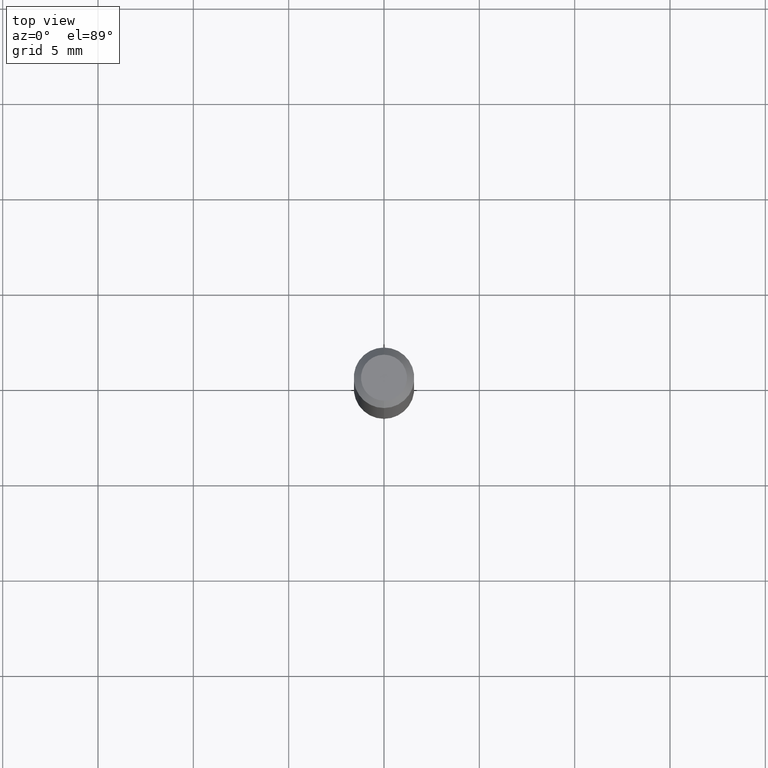
[diagram: clean part render]
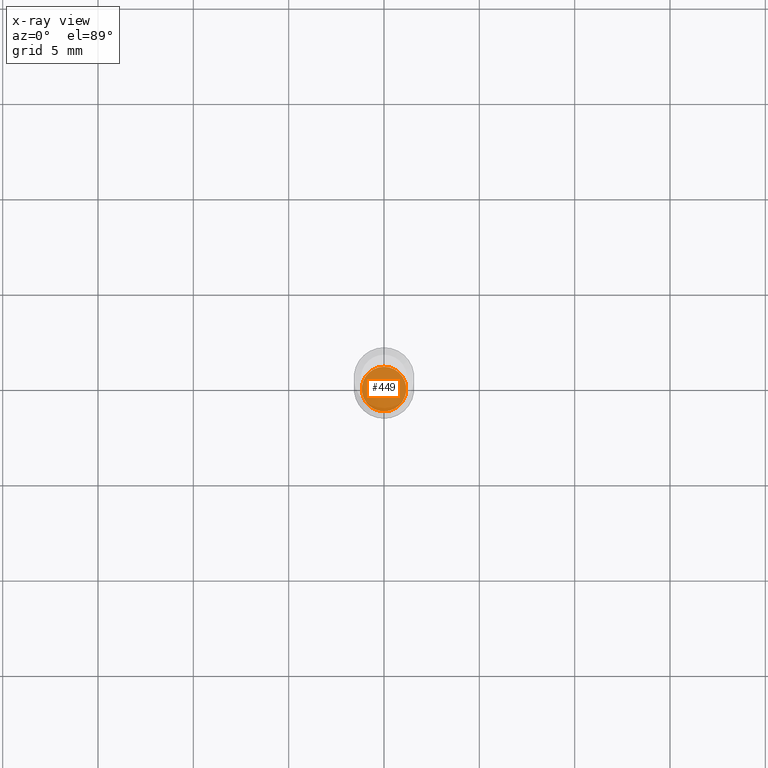
[diagram: x-ray — body ghosted, one internal face saturated and labeled with its STEP entity id]
A machine part, top view, then the same camera in x-ray: the body is ghosted and one INTERNAL B-rep face — a face not visible from any outside direction — is saturated and labeled: STEP entity #449.
In plain terms, the highlighted planar face has unit normal (-0, 0, 1).
Its self-contained STEP definition (entity closure, byte-faithful):
#68 = EDGE_CURVE ( 'NONE', #499, #412, #465, .T. ) ;
#180 = CIRCLE ( 'NONE', #366, 0.04599999999999999922 ) ;
#187 = CARTESIAN_POINT ( 'NONE',  ( 3.325794411660219222E-29, -4.748476435207708706E-15, -1.360000000000000320 ) ) ;
#188 = DIRECTION ( 'NONE',  ( -6.982962677686265133E-15, -1.000000000000000000, 5.938799986226659171E-15 ) ) ;
#201 = DIRECTION ( 'NONE',  ( -2.445437067397219192E-29, 3.491526790593902555E-15, 1.000000000000000000 ) ) ;
#217 = ORIENTED_EDGE ( 'NONE', *, *, #347, .F. ) ;
#218 = DIRECTION ( 'NONE',  ( -2.445437067397219472E-29, 3.491526790593902555E-15, 1.000000000000000000 ) ) ;
#234 = DIRECTION ( 'NONE',  ( -6.982962677686265922E-15, -1.000000000000000000, 3.491526790593902555E-15 ) ) ;
#249 = ORIENTED_EDGE ( 'NONE', *, *, #68, .F. ) ;
#298 = AXIS2_PLACEMENT_3D ( 'NONE', #492, #201, #234 ) ;
#305 = DIRECTION ( 'NONE',  ( -2.445437067397219472E-29, 3.491526790593902555E-15, 1.000000000000000000 ) ) ;
#317 = CARTESIAN_POINT ( 'NONE',  ( -3.212162831735349630E-16, -0.04600000000000474543, -1.359999999999999876 ) ) ;
#347 = EDGE_CURVE ( 'NONE', #412, #499, #180, .T. ) ;
#366 = AXIS2_PLACEMENT_3D ( 'NONE', #427, #218, #188 ) ;
#412 = VERTEX_POINT ( 'NONE', #508 ) ;
#419 = FACE_OUTER_BOUND ( 'NONE', #429, .T. ) ;
#427 = CARTESIAN_POINT ( 'NONE',  ( 3.325794411660219222E-29, -4.748476435207708706E-15, -1.360000000000000320 ) ) ;
#429 = EDGE_LOOP ( 'NONE', ( #249, #217 ) ) ;
#449 = ADVANCED_FACE ( 'NONE', ( #419 ), #467, .F. ) ;
#465 = CIRCLE ( 'NONE', #507, 0.04599999999999999922 ) ;
#467 = PLANE ( 'NONE',  #298 ) ;
#492 = CARTESIAN_POINT ( 'NONE',  ( 3.325794411660219222E-29, -4.748476435207708706E-15, -1.360000000000000320 ) ) ;
#499 = VERTEX_POINT ( 'NONE', #317 ) ;
#503 = DIRECTION ( 'NONE',  ( -6.982962677686265133E-15, -1.000000000000000000, 5.938799986226659171E-15 ) ) ;
#507 = AXIS2_PLACEMENT_3D ( 'NONE', #187, #305, #503 ) ;
#508 = CARTESIAN_POINT ( 'NONE',  ( 3.286260152890792177E-16, 0.04599999999999525302, -1.360000000000000542 ) ) ;